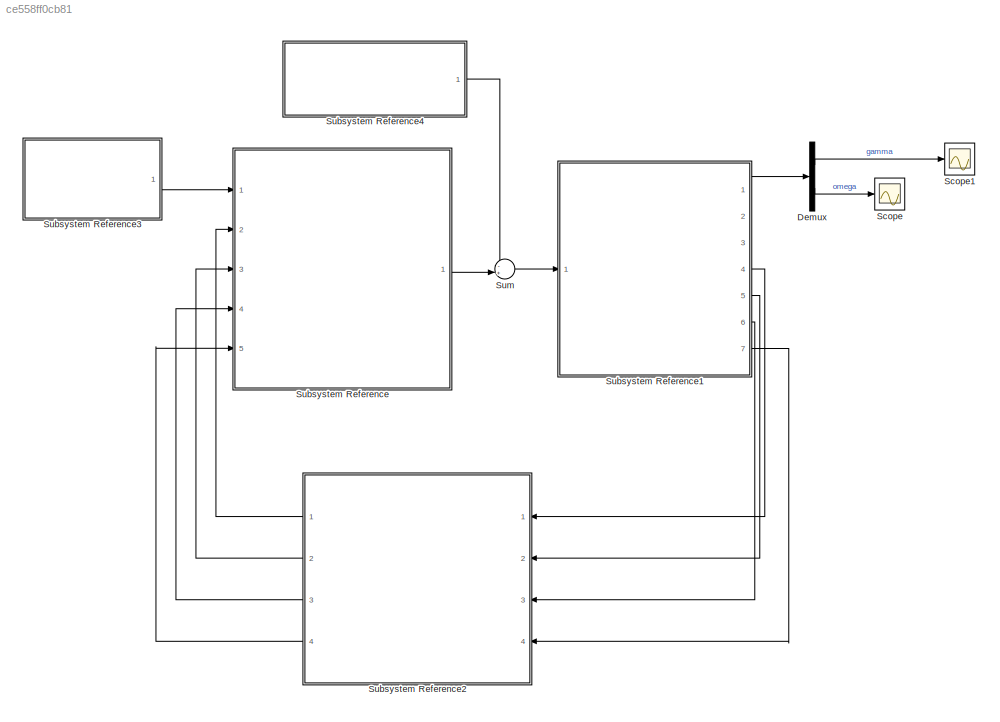
MODEL slx_ce558ff0cb81
KIND model
CONFIG AbsTol = auto
CONFIG EnableMultiTasking = off
CONFIG FixedStep = auto
CONFIG MaxStep = 0.001
CONFIG MinStep = auto
CONFIG RelTol = 1e-3
CONFIG SampleTimeConstraint = Unconstrained
CONFIG SolverName = ode45
CONFIG StartTime = 0.0
CONFIG StopTime = 30
BLOCK [Demux] Demux
  Outputs = 2
  Ports = [1, 2]
BLOCK [Scope] Scope
  Floating = off
  NumInputPorts = 1
  Ports = [1]
  ScopeSpecificationString = Simulink.scopes.TimeScopeBlockCfg('CurrentConfiguration', extmgr.ConfigurationSet(extmgr.Configuration('Core','General UI',true),extmgr.Configuration('Core','Source UI',true),extmgr.Configuration('Sources','WiredSimulink',true),extmgr.Configuration('Visuals','Time Domain',true,'SerializedDisplays',{struct('MinYLimReal','-1.82954','MaxYLimReal','6.1131','YLabelReal','','MinYLimMag','0.00000','MaxYL...<+1538ch>
BLOCK [Scope] Scope1
  Floating = off
  NumInputPorts = 1
  Ports = [1]
  ScopeSpecificationString = Simulink.scopes.TimeScopeBlockCfg('CurrentConfiguration', extmgr.ConfigurationSet(extmgr.Configuration('Core','General UI',true),extmgr.Configuration('Core','Source UI',true),extmgr.Configuration('Sources','WiredSimulink',true,'DataLoggingVariableName','ScopeData1'),extmgr.Configuration('Visuals','Time Domain',true,'SerializedDisplays',{struct('MinYLimReal','-43.56108','MaxYLimReal','333.12426','Y...<+1592ch>
BLOCK [SubSystem] Subsystem Reference
  Ports = [5, 1]
  ReferencedSubsystem = StateSpaceControllerRobust_SubSystem
  RequestExecContextInheritance = off
BLOCK [SubSystem] Subsystem Reference1
  Ports = [1, 7]
  ReferencedSubsystem = Robot_SubSystem
  RequestExecContextInheritance = off
BLOCK [SubSystem] Subsystem Reference2
  NameLocation = top
  Ports = [4, 4]
  ReferencedSubsystem = SimpleStateObserver_SubSystem
  RequestExecContextInheritance = off
BLOCK [SubSystem] Subsystem Reference3
  Ports = [0, 1]
  ReferencedSubsystem = GeneratorGam_ref_SubSystem
  RequestExecContextInheritance = off
BLOCK [SubSystem] Subsystem Reference4
  Ports = [0, 1]
  ReferencedSubsystem = DisturbanceGenerator_SubSystem
  RequestExecContextInheritance = off
BLOCK [Sum] Sum
  Inputs = -+|
  Ports = [2, 1]
LINE Demux:1 -> Scope1:1
LINE Demux:2 -> Scope:1
LINE Subsystem Reference1:1 -> Demux:1
LINE Subsystem Reference1:4 -> Subsystem Reference2:1
LINE Subsystem Reference1:5 -> Subsystem Reference2:2
LINE Subsystem Reference1:6 -> Subsystem Reference2:3
LINE Subsystem Reference1:7 -> Subsystem Reference2:4
LINE Subsystem Reference2:1 -> Subsystem Reference:2
LINE Subsystem Reference2:2 -> Subsystem Reference:3
LINE Subsystem Reference2:3 -> Subsystem Reference:4
LINE Subsystem Reference2:4 -> Subsystem Reference:5
LINE Subsystem Reference3:1 -> Subsystem Reference:1
LINE Subsystem Reference4:1 -> Sum:1
LINE Subsystem Reference:1 -> Sum:2
LINE Sum:1 -> Subsystem Reference1:1
